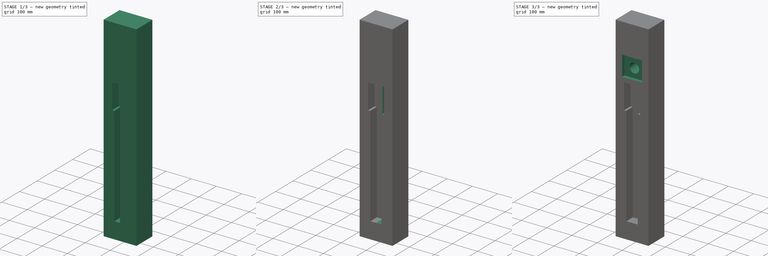
[diagram: build sequence overview — one tinted view per stage of 3, left to right]
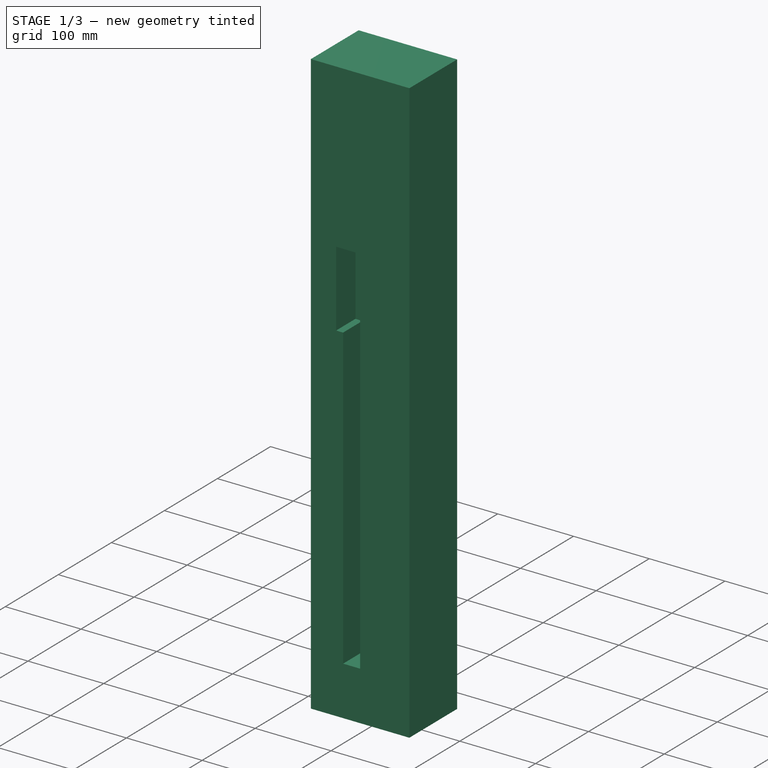
[diagram: stage 1 of 3 — iso view after this stage's code; geometry added in this stage tinted green]
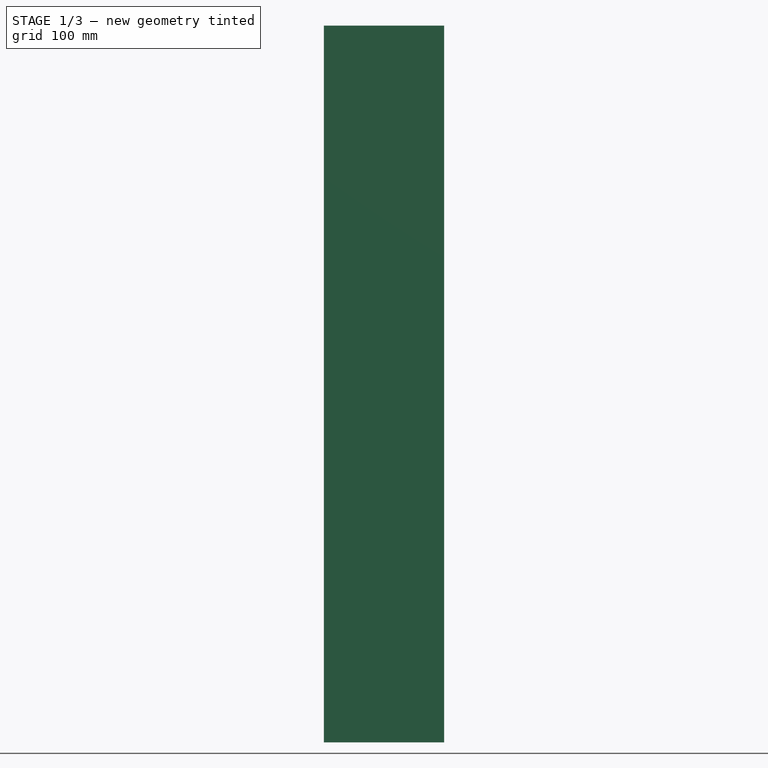
[diagram: stage 1 of 3 — front view after this stage's code; geometry added in this stage tinted green]
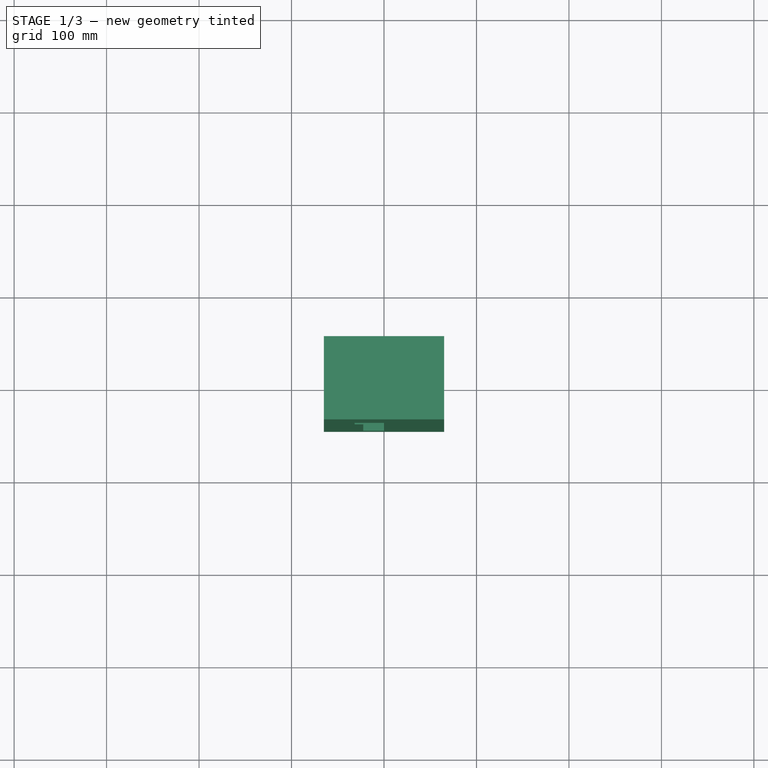
[diagram: stage 1 of 3 — top view after this stage's code; geometry added in this stage tinted green]
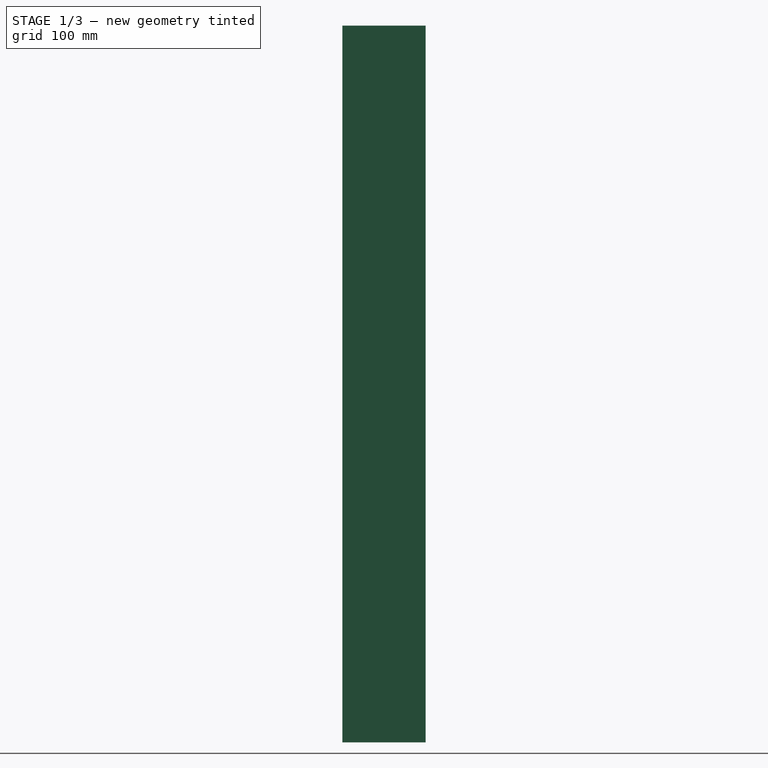
[diagram: stage 1 of 3 — right view after this stage's code; geometry added in this stage tinted green]
FCSTD DOCUMENT  (FreeCAD 1.0R39109 (Git))
Label: 11_post_front_left
License: All rights reserved
LicenseURL: http://en.wikipedia.org/wiki/All_rights_reserved
objects: Sketcher::SketchObject×4, PartDesign::Pocket×3, PartDesign::Pad×1, Spreadsheet::Sheet×1, PartDesign::Mirrored×1, PartDesign::Body×1
note: 23 computed .brp shape members not serialized (recipe doc carries the construction recipe); baked Part::Feature solids carry a one-line shape summary decoded from their .brp

FEATURE [Sketcher::SketchObject] Sketch
  ArcFitTolerance = 1e-06
  AttachmentSupport = -> [XY_Plane]
  FullyConstrained = true
  MakeInternals = false
  MapMode = 5
  expr: Constraints[11] = Spreadsheet.post_width
  expr: Constraints[12] = Spreadsheet.post_length
  sketch-geometry (5):
    g0: LineSegment StartX=-65 StartY=45 StartZ=0 EndX=-65 EndY=-45 EndZ=0
    g1: LineSegment StartX=-65 StartY=-45 StartZ=0 EndX=65 EndY=-45 EndZ=0
    g2: LineSegment StartX=65 StartY=-45 StartZ=0 EndX=65 EndY=45 EndZ=0
    g3: LineSegment StartX=65 StartY=45 StartZ=0 EndX=-65 EndY=45 EndZ=0
    g4: LineSegment [constr] StartX=-65 StartY=45 StartZ=0 EndX=65 EndY=-45 EndZ=0
  constraints (13):
    c: Coincident(g0,g1)
    c: Coincident(g1,g2)
    c: Coincident(g2,g3)
    c: Coincident(g3,g0)
    c: Vertical(g0)
    c: Vertical(g2)
    c: Horizontal(g1)
    c: Horizontal(g3)
    c: Coincident(g4,g0)
    c: Coincident(g4,g1)
    c: Symmetric(g0,g1,g-1)
    c: Distance(g3,g3) = 130
    c: DistanceY(g0,g0) = 90
FEATURE [PartDesign::Pad] Pad
  Direction = (0,0,1)
  Length = 775
  Length2 = 10
  Midplane = true
  Profile = -> Sketch
  ReferenceAxis = -> Sketch [N_Axis]
  Suppressed = false
  Type = 0
  expr: Length = Spreadsheet.post_height
FEATURE [Spreadsheet::Sheet] Spreadsheet
  cells = A2='post width; B2(post_width)=130; A3='post length; B3(post_length)=90; A4='post height; B4(post_height)=775
FEATURE [Sketcher::SketchObject] Sketch001
  ArcFitTolerance = 1e-06
  AttachmentOffset = pos=(0,0,45) rot=(0,0,1;0rad)
  AttachmentSupport = -> [XZ_Plane]
  ExternalGeometry = -> [Pad]
  FullyConstrained = true
  MakeInternals = false
  MapMode = 5
  Placement = pos=(0,-45,1e-14) rot=(1,0,0;1.5708rad)
  sketch-geometry (6):
    g0: LineSegment StartX=0 StartY=172.5 StartZ=0 EndX=-31.75 EndY=172.5 EndZ=0
    g1: LineSegment StartX=-31.75 StartY=172.5 StartZ=0 EndX=-31.75 EndY=72.5 EndZ=0
    g2: LineSegment StartX=-31.75 StartY=72.5 StartZ=0 EndX=-22.5 EndY=72.5 EndZ=0
    g3: LineSegment StartX=-22.5 StartY=72.5 StartZ=0 EndX=-22.5 EndY=-322.5 EndZ=0
    g4: LineSegment StartX=-22.5 StartY=-322.5 StartZ=0 EndX=0 EndY=-322.5 EndZ=0
    g5: LineSegment StartX=0 StartY=172.5 StartZ=0 EndX=0 EndY=-322.5 EndZ=0
  constraints (18):
    c: PointOnObject(g0,g-2)
    c: Horizontal(g0)
    c: Coincident(g1,g0)
    c: Vertical(g1)
    c: Coincident(g2,g1)
    c: Horizontal(g2)
    c: Coincident(g3,g2)
    c: Vertical(g3)
    c: Coincident(g4,g3)
    c: Perpendicular(g3,g4)
    c: Distance(g4,g4) = 22.5
    c: PointOnObject(g4,g-2)
    c: Distance(g4,g-3) = 65
    c: DistanceY(g3,g3) = 395
    c: DistanceY(g1,g1) = 100
    c: Distance(g0,g0) = 31.75
    c: Coincident(g5,g0)
    c: Coincident(g5,g4)
FEATURE [PartDesign::Pocket] Pocket
  BaseFeature = -> Pad
  Direction = (0,1,-2e-16)
  Length = 36.5
  Length2 = 5
  Profile = -> Sketch001
  ReferenceAxis = -> Sketch001 [N_Axis]
  Suppressed = false
  Type = 0
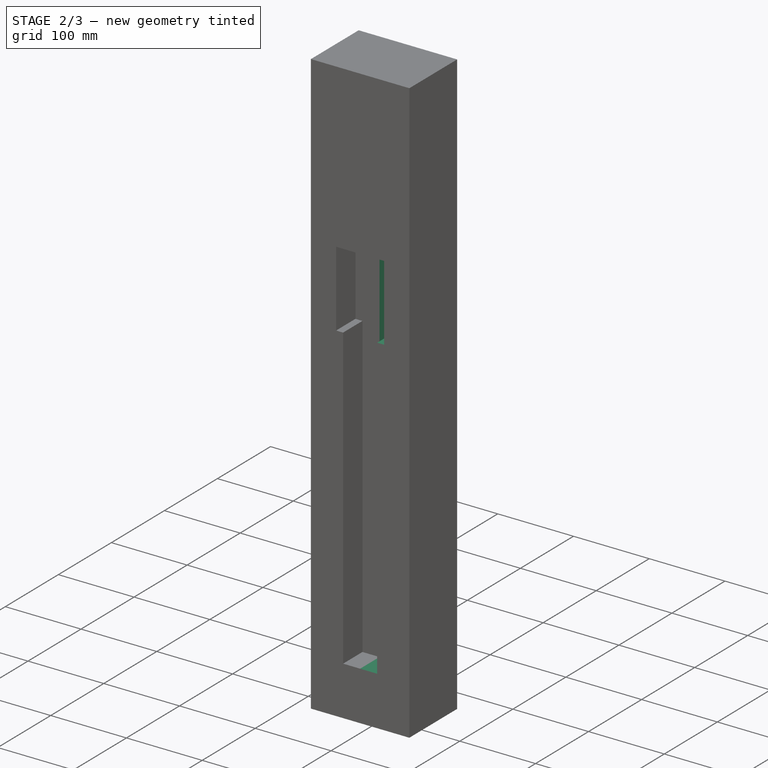
[diagram: stage 2 of 3 — iso view after this stage's code; geometry added in this stage tinted green]
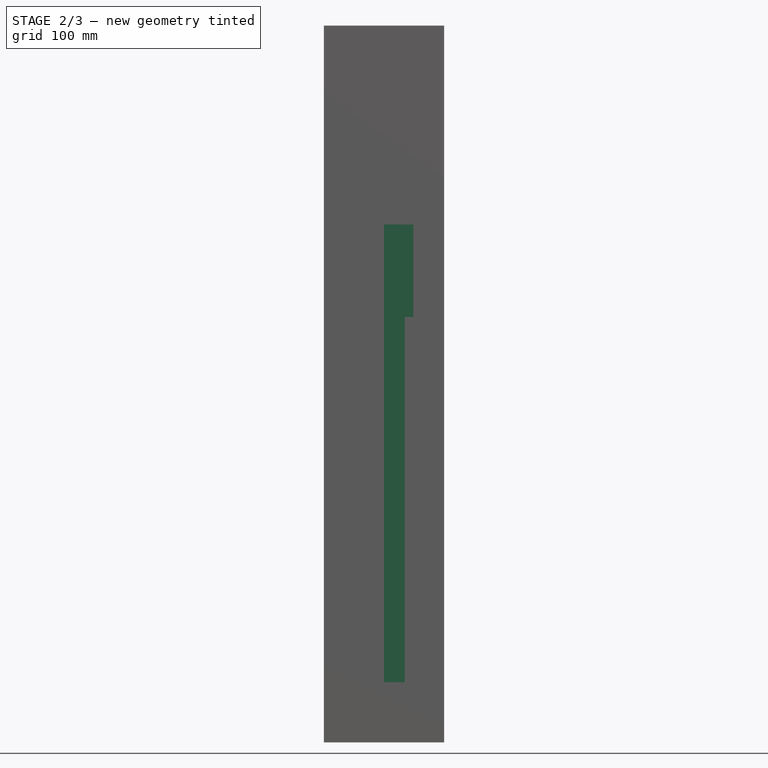
[diagram: stage 2 of 3 — front view after this stage's code; geometry added in this stage tinted green]
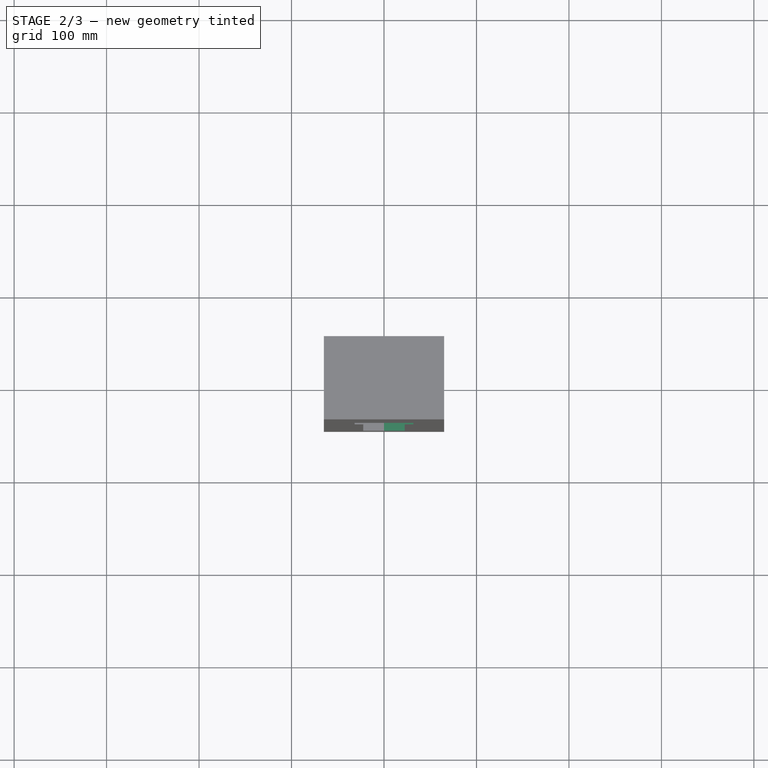
[diagram: stage 2 of 3 — top view after this stage's code; geometry added in this stage tinted green]
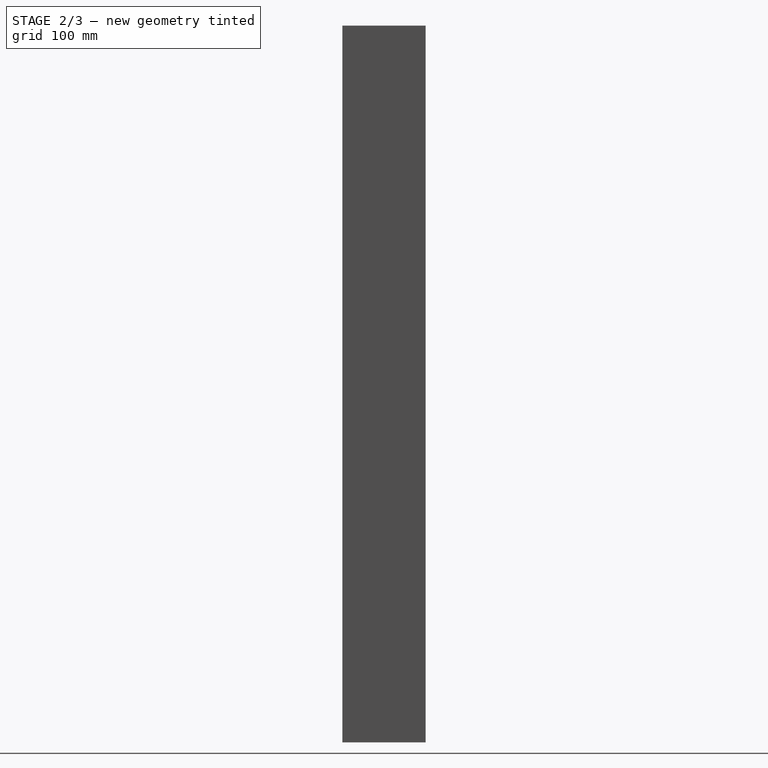
[diagram: stage 2 of 3 — right view after this stage's code; geometry added in this stage tinted green]
FEATURE [PartDesign::Mirrored] Mirrored
  BaseFeature = -> Pocket
  MirrorPlane = -> Sketch001 [V_Axis]
  Originals = -> [Pocket]
  Suppressed = false
  TransformMode = 0
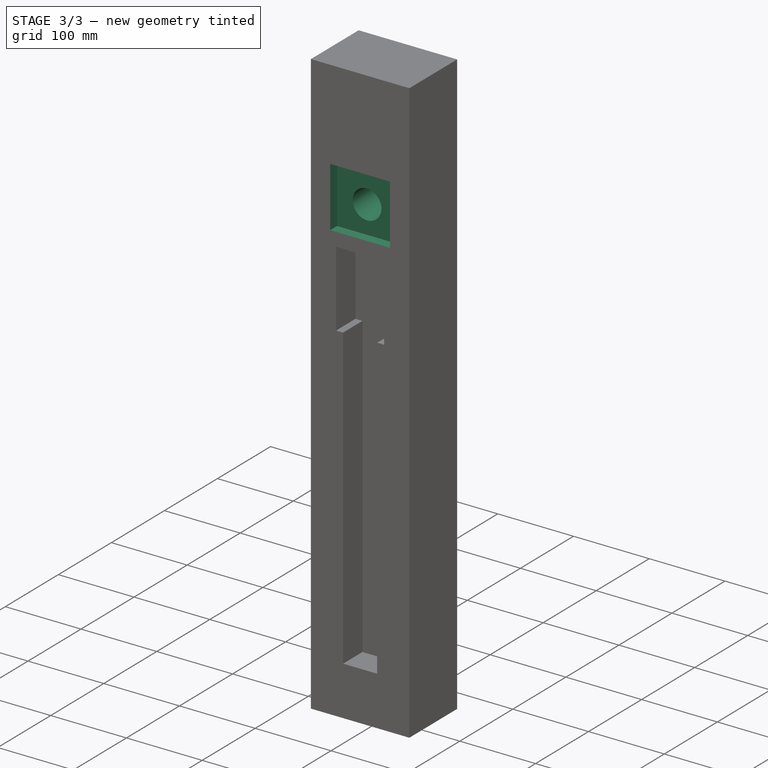
[diagram: stage 3 of 3 — iso view after this stage's code; geometry added in this stage tinted green]
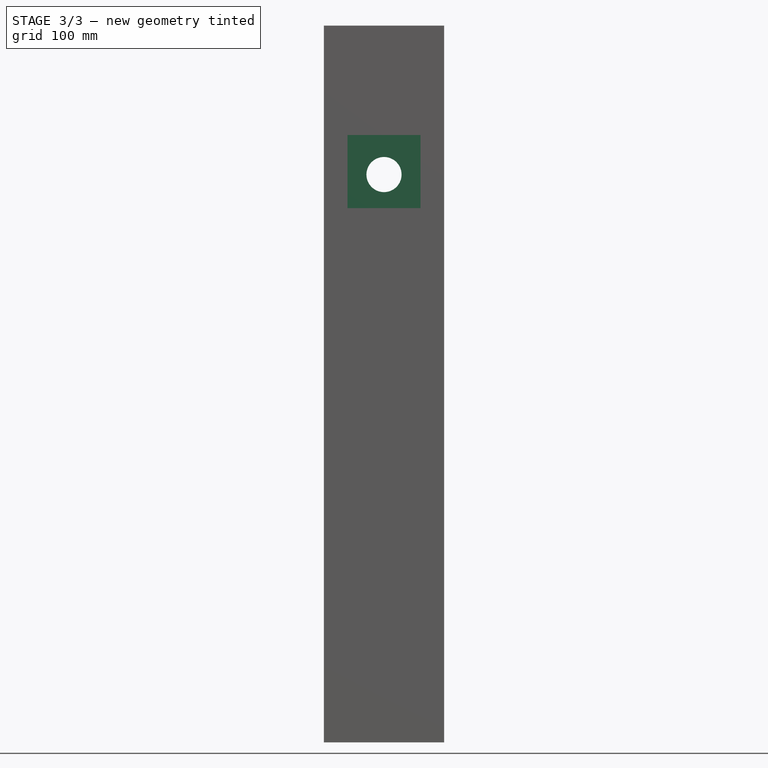
[diagram: stage 3 of 3 — front view after this stage's code; geometry added in this stage tinted green]
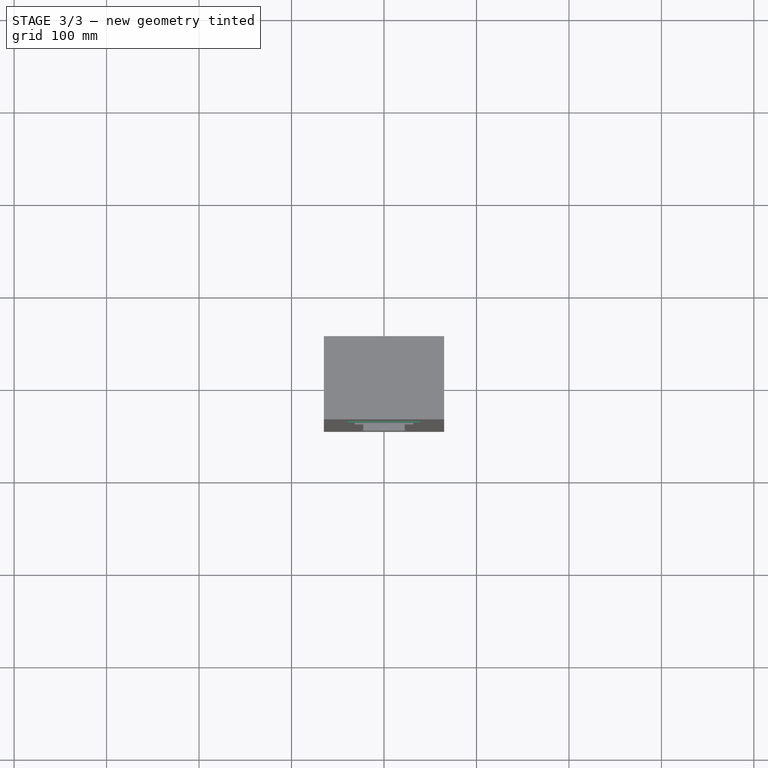
[diagram: stage 3 of 3 — top view after this stage's code; geometry added in this stage tinted green]
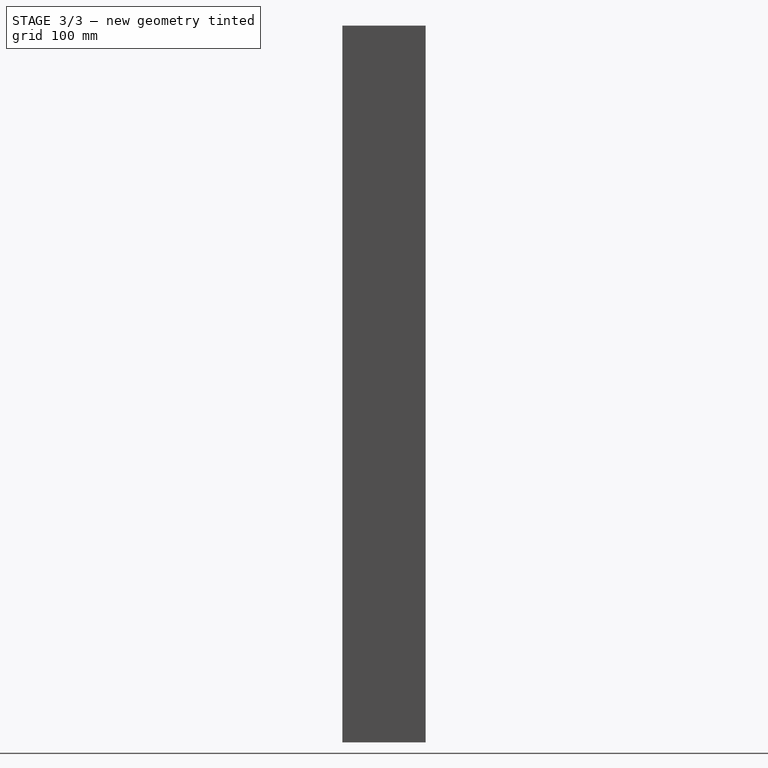
[diagram: stage 3 of 3 — right view after this stage's code; geometry added in this stage tinted green]
FEATURE [Sketcher::SketchObject] Sketch002
  ArcFitTolerance = 1e-06
  AttachmentOffset = pos=(0,0,45) rot=(0,0,1;0rad)
  AttachmentSupport = -> [XZ_Plane]
  ExternalGeometry = -> [Mirrored]
  FullyConstrained = true
  MakeInternals = false
  MapMode = 5
  Placement = pos=(0,-45,1e-14) rot=(1,0,0;1.5708rad)
  expr: .AttachmentOffset.Base.z = Spreadsheet.post_length / 2
  sketch-geometry (1):
    g0: Circle CenterX=0 CenterY=226.5 CenterZ=0 NormalX=0 NormalY=0 NormalZ=1 AngleXU=0 Radius=19
  constraints (3):
    c: PointOnObject(g0,g-2)
    c: Distance(g0,g-3) = 614
    c: Diameter(g0) = 38
FEATURE [PartDesign::Pocket] Pocket001
  BaseFeature = -> Mirrored
  Direction = (0,1,-2e-16)
  Length = 5
  Length2 = 5
  Profile = -> Sketch002
  ReferenceAxis = -> Sketch002 [N_Axis]
  Suppressed = false
  Type = 1
FEATURE [Sketcher::SketchObject] Sketch003
  ArcFitTolerance = 1e-06
  AttachmentOffset = pos=(0,0,45) rot=(0,0,1;0rad)
  AttachmentSupport = -> [XZ_Plane]
  ExternalGeometry = -> [Pocket001]
  FullyConstrained = true
  MakeInternals = false
  MapMode = 5
  Placement = pos=(0,-45,1e-14) rot=(1,0,0;1.5708rad)
  expr: .AttachmentOffset.Base.z = Spreadsheet.post_length / 2
  sketch-geometry (4):
    g0: LineSegment StartX=-39.5 StartY=269.24 StartZ=0 EndX=-39.5 EndY=190.24 EndZ=0
    g1: LineSegment StartX=-39.5 StartY=190.24 StartZ=0 EndX=39.5 EndY=190.24 EndZ=0
    g2: LineSegment StartX=39.5 StartY=190.24 StartZ=0 EndX=39.5 EndY=269.24 EndZ=0
    g3: LineSegment StartX=39.5 StartY=269.24 StartZ=0 EndX=-39.5 EndY=269.24 EndZ=0
  constraints (12):
    c: Coincident(g0,g1)
    c: Coincident(g1,g2)
    c: Coincident(g2,g3)
    c: Coincident(g3,g0)
    c: Vertical(g0)
    c: Vertical(g2)
    c: Horizontal(g1)
    c: Horizontal(g3)
    c: DistanceY(g0,g0) = 79
    c: Equal(g0,g3)
    c: Distance(g0,g-2) = 39.5
    c: Distance(g-3,g1) = 577.74
FEATURE [PartDesign::Pocket] Pocket002
  BaseFeature = -> Pocket001
  Direction = (0,1,-2e-16)
  Length = 13
  Length2 = 5
  Profile = -> Sketch003
  ReferenceAxis = -> Sketch003 [N_Axis]
  Suppressed = false
  Type = 0
FEATURE [PartDesign::Body] Body
  AllowCompound = false
  Group = -> [Sketch,Pad,Sketch001,Pocket,Mirrored,Sketch002,Pocket001,Sketch003,Pocket002]
  Origin = -> Origin
  Tip = -> Pocket002
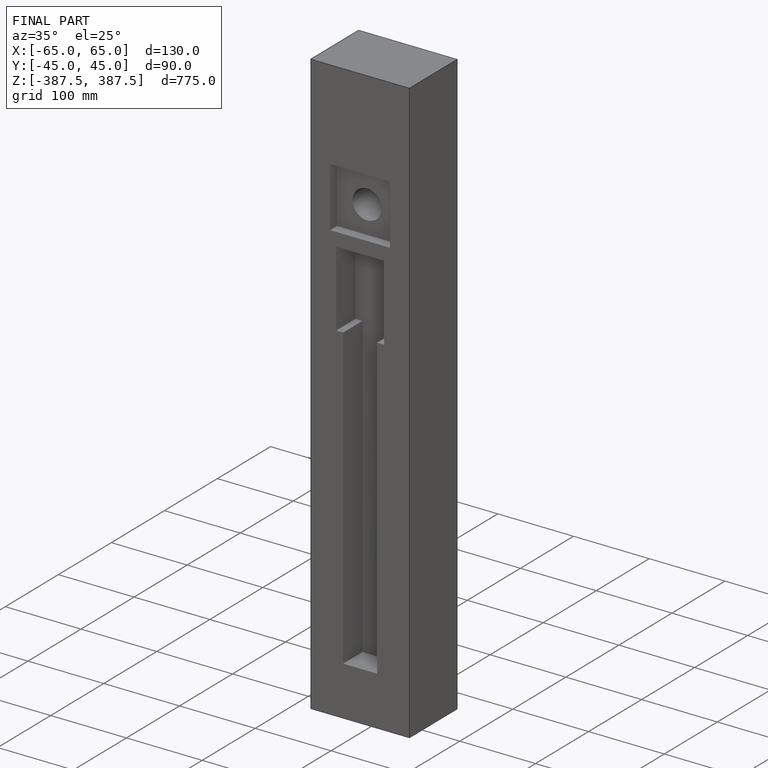
[diagram: finished part — iso view with bounding-box wireframe]
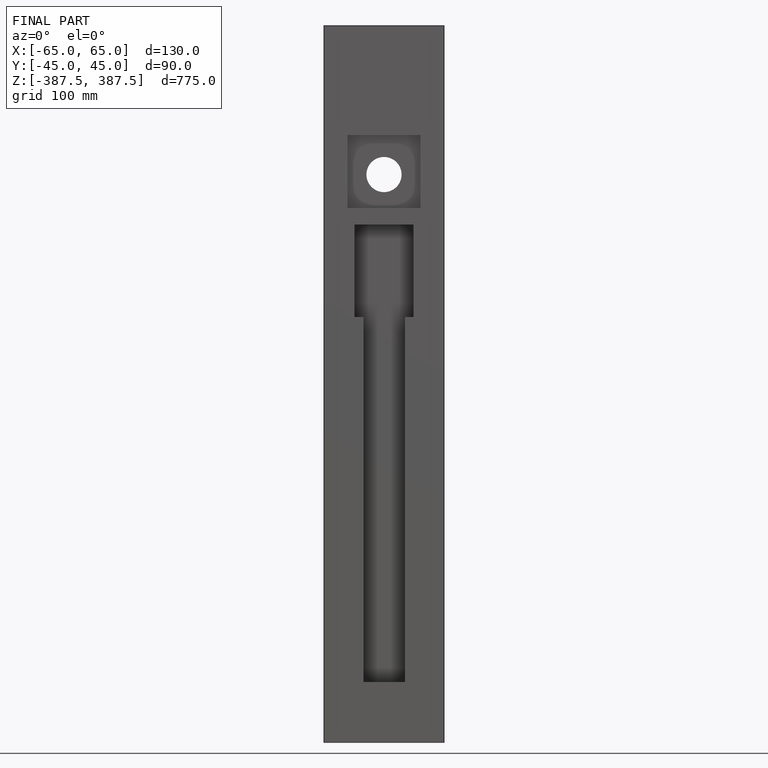
[diagram: finished part — front view with bounding-box wireframe]
